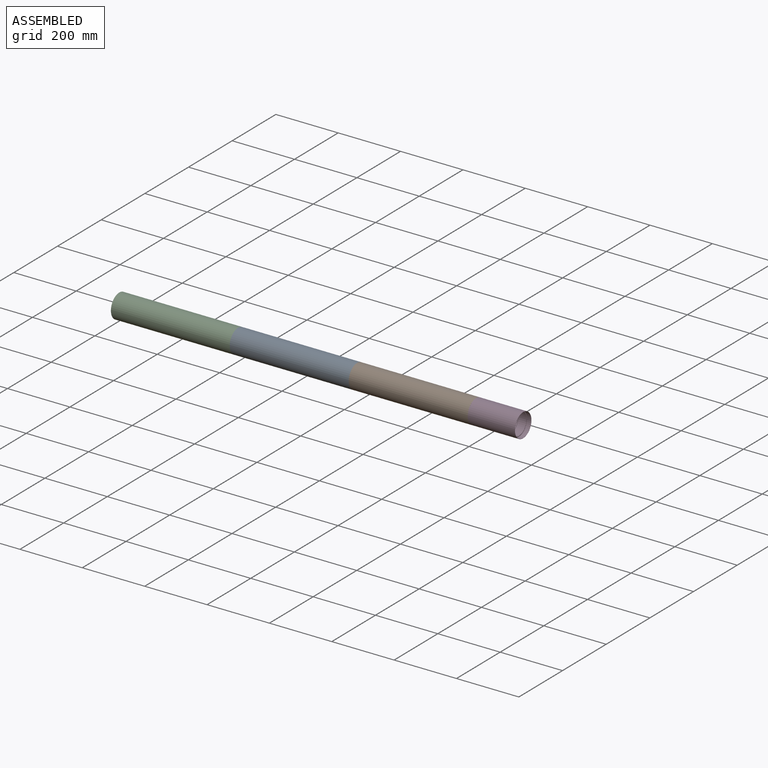
[diagram: assembled view]
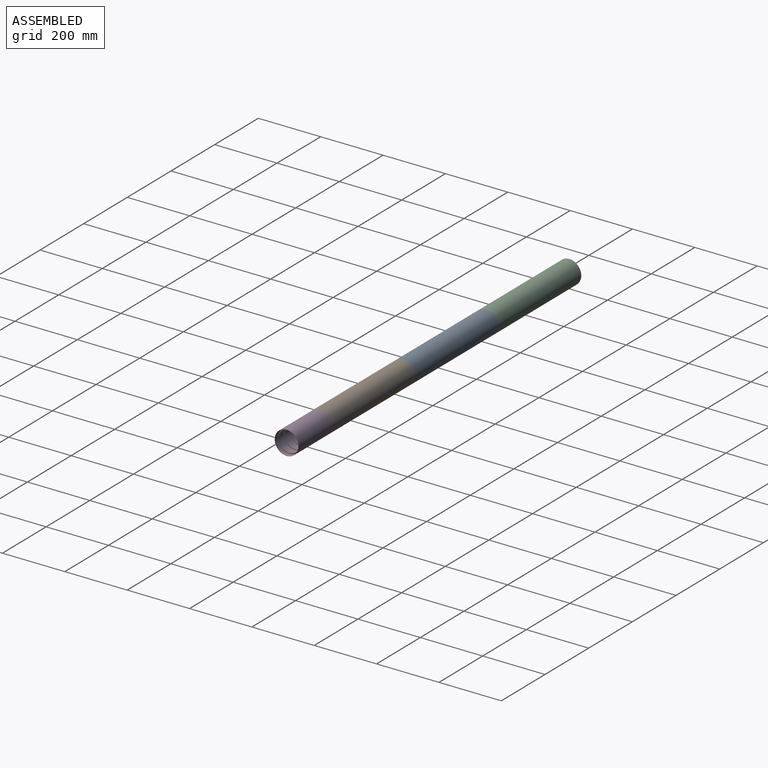
[diagram: assembled view, second angle]
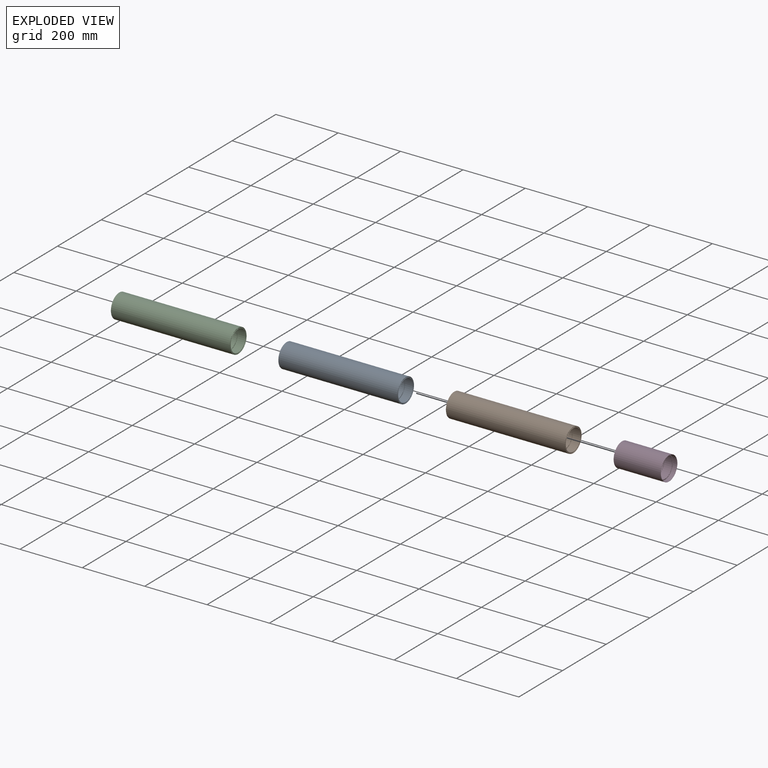
[diagram: exploded view]
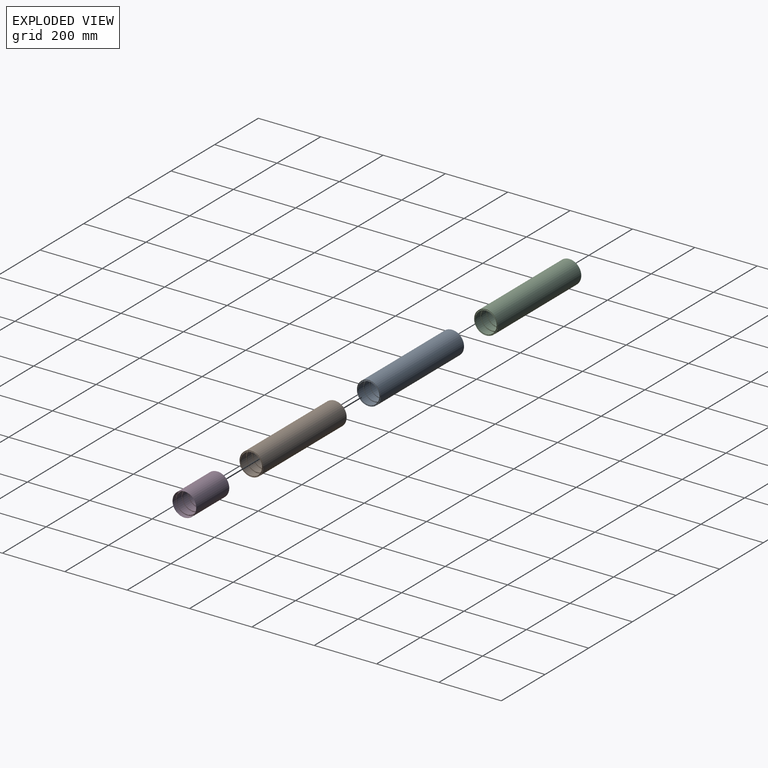
[diagram: exploded view, second angle]
ASSEMBLY  parts=4 mates=3
PART A: 258 faces, bbox 385.2x83.9x83.9 mm
  f0: cone r=34mm half-angle=47.5deg, axis (1,0,0), area 85.3mm2, adj f1,f257
  f1: cylinder r=34.29mm len=68.58mm, axis (-1,0,0), area 219mm2, adj f0,f2
  f2: torus R=36.2mm, axis (-1,0,0), area 136.6mm2, adj f1,f3
  f3: torus R=34.92mm, axis (-1,0,0), area 137.8mm2, adj f2,f4
  f4: torus R=36.2mm, axis (-1,0,0), area 211.3mm2, adj f3,f5
  f5: torus R=36.2mm, axis (-1,0,0), area 143.1mm2, adj f4,f6
  f6: torus R=36.2mm, axis (-1,0,0), area 215.6mm2, adj f5,f7
  f7: torus R=37.46mm, axis (-1,0,0), area 148.3mm2, adj f6,f8
  f8: cylinder r=37.63mm len=75.26mm, axis (-1,0,0), area 5999.8mm2, adj f7,f9
  f9: torus R=37.46mm, axis (-1,0,0), area 148.3mm2, adj f8,f10
  f10: torus R=36.2mm, axis (-1,0,0), area 215.6mm2, adj f9,f11
  f11: torus R=36.2mm, axis (-1,0,0), area 143.1mm2, adj f10,f12
  f12: torus R=36.2mm, axis (-1,0,0), area 211.3mm2, adj f11,f13
  f13: torus R=34.92mm, axis (-1,0,0), area 137.8mm2, adj f12,f14
  f14: torus R=36.2mm, axis (-1,0,0), area 136.6mm2, adj f13,f15
  f15: cylinder r=34.29mm len=68.58mm, axis (-1,0,0), area 219mm2, adj f14,f16
  f16: cone r=34mm half-angle=47.5deg, axis (-1,0,0), area 85.3mm2, adj f15,f17
  f17: cone r=34mm half-angle=47.5deg, axis (1,0,0), area 85.3mm2, adj f16,f18
  f18: cylinder r=34.29mm len=68.58mm, axis (-1,0,0), area 219mm2, adj f17,f19
  f19: torus R=36.2mm, axis (-1,0,0), area 136.6mm2, adj f18,f20
  f20: torus R=34.92mm, axis (-1,0,0), area 137.8mm2, adj f19,f21
  f21: torus R=36.2mm, axis (-1,0,0), area 211.3mm2, adj f20,f22
  f22: torus R=36.2mm, axis (-1,0,0), area 143.1mm2, adj f21,f23
  f23: torus R=36.2mm, axis (-1,0,0), area 215.6mm2, adj f22,f24
  f24: torus R=37.46mm, axis (-1,0,0), area 148.3mm2, adj f23,f25
  f25: cylinder r=37.63mm len=75.26mm, axis (-1,0,0), area 6048.8mm2, adj f24,f26
  f26: torus R=37.46mm, axis (-1,0,0), area 96.7mm2, adj f25,f27
  f27: torus R=36.2mm, axis (-1,0,0), area 215.6mm2, adj f26,f28
  f28: torus R=36.2mm, axis (-1,0,0), area 143.1mm2, adj f27,f29
  f29: torus R=36.2mm, axis (-1,0,0), area 211.3mm2, adj f28,f30
  f30: torus R=34.92mm, axis (-1,0,0), area 137.8mm2, adj f29,f31
  f31: torus R=36.2mm, axis (-1,0,0), area 136.6mm2, adj f30,f32
  f32: cylinder r=34.29mm len=68.58mm, axis (-1,0,0), area 219mm2, adj f31,f33
  f33: cone r=34mm half-angle=47.5deg, axis (-1,0,0), area 85.3mm2, adj f32,f34
  f34: cone r=34mm half-angle=47.5deg, axis (1,0,0), area 85.3mm2, adj f33,f35
  f35: cylinder r=34.29mm len=68.58mm, axis (-1,0,0), area 219mm2, adj f34,f36
  f36: torus R=36.2mm, axis (-1,0,0), area 136.6mm2, adj f35,f37
  f37: torus R=34.92mm, axis (-1,0,0), area 137.8mm2, adj f36,f38
  f38: torus R=36.2mm, axis (-1,0,0), area 211.3mm2, adj f37,f39
  f39: torus R=36.2mm, axis (-1,0,0), area 143.1mm2, adj f38,f40
  f40: torus R=36.2mm, axis (-1,0,0), area 215.6mm2, adj f39,f41
  f41: torus R=37.46mm, axis (-1,0,0), area 96.7mm2, adj f40,f42
  f42: cylinder r=37.63mm len=75.26mm, axis (-1,0,0), area 6097.7mm2, adj f41,f43
  f43: torus R=37.46mm, axis (-1,0,0), area 96.7mm2, adj f42,f44
  f44: torus R=36.2mm, axis (-1,0,0), area 215.6mm2, adj f43,f45
  f45: torus R=36.2mm, axis (-1,0,0), area 143.1mm2, adj f44,f46
  f46: torus R=36.2mm, axis (-1,0,0), area 211.3mm2, adj f45,f47
  f47: torus R=34.92mm, axis (-1,0,0), area 137.8mm2, adj f46,f48
  f48: torus R=36.2mm, axis (-1,0,0), area 136.6mm2, adj f47,f49
  f49: cylinder r=34.29mm len=68.58mm, axis (-1,0,0), area 219mm2, adj f48,f50
  f50: cone r=34mm half-angle=47.5deg, axis (-1,0,0), area 85.3mm2, adj f49,f51
  f51: cone r=34mm half-angle=47.5deg, axis (1,0,0), area 85.3mm2, adj f50,f52
  f52: cylinder r=34.29mm len=68.58mm, axis (-1,0,0), area 219mm2, adj f51,f53
  f53: torus R=36.2mm, axis (-1,0,0), area 136.6mm2, adj f52,f54
  f54: torus R=34.92mm, axis (-1,0,0), area 137.8mm2, adj f53,f55
  f55: torus R=36.2mm, axis (-1,0,0), area 211.3mm2, adj f54,f56
  f56: torus R=36.2mm, axis (-1,0,0), area 143.1mm2, adj f55,f57
  f57: torus R=36.2mm, axis (-1,0,0), area 215.6mm2, adj f56,f58
  f58: torus R=37.46mm, axis (-1,0,0), area 96.7mm2, adj f57,f59
  f59: cylinder r=37.63mm len=75.26mm, axis (-1,0,0), area 6097.7mm2, adj f58,f60
  f60: torus R=37.46mm, axis (-1,0,0), area 96.7mm2, adj f59,f61
  f61: torus R=36.2mm, axis (-1,0,0), area 215.6mm2, adj f60,f62
  f62: torus R=36.2mm, axis (-1,0,0), area 143.1mm2, adj f61,f63
  f63: torus R=36.2mm, axis (-1,0,0), area 211.3mm2, adj f62,f64
  f64: torus R=34.92mm, axis (-1,0,0), area 137.8mm2, adj f63,f65
  f65: torus R=36.2mm, axis (-1,0,0), area 136.6mm2, adj f64,f66
  f66: cylinder r=34.29mm len=68.58mm, axis (-1,0,0), area 219mm2, adj f65,f67
  f67: cone r=34mm half-angle=47.5deg, axis (-1,0,0), area 85.3mm2, adj f66,f68
  f68: cone r=34mm half-angle=47.5deg, axis (1,0,0), area 85.3mm2, adj f67,f69
  f69: cylinder r=34.29mm len=68.58mm, axis (-1,0,0), area 219mm2, adj f68,f70
  f70: torus R=36.2mm, axis (-1,0,0), area 136.6mm2, adj f69,f71
  f71: torus R=34.92mm, axis (-1,0,0), area 137.8mm2, adj f70,f72
  f72: torus R=36.2mm, axis (-1,0,0), area 211.3mm2, adj f71,f73
  f73: torus R=36.2mm, axis (-1,0,0), area 143.1mm2, adj f72,f74
  f74: torus R=36.2mm, axis (-1,0,0), area 215.6mm2, adj f73,f75
  f75: torus R=37.46mm, axis (-1,0,0), area 96.7mm2, adj f74,f76
  f76: cylinder r=37.63mm len=75.26mm, axis (-1,0,0), area 6097.7mm2, adj f75,f77
  f77: torus R=37.46mm, axis (-1,0,0), area 96.7mm2, adj f76,f78
  f78: torus R=36.2mm, axis (-1,0,0), area 215.6mm2, adj f77,f79
  f79: torus R=36.2mm, axis (-1,0,0), area 143.1mm2, adj f78,f80
  f80: torus R=36.2mm, axis (-1,0,0), area 211.3mm2, adj f79,f81
  f81: torus R=34.92mm, axis (-1,0,0), area 137.8mm2, adj f80,f82
  f82: torus R=36.2mm, axis (-1,0,0), area 136.6mm2, adj f81,f83
  f83: cylinder r=34.29mm len=68.58mm, axis (-1,0,0), area 219mm2, adj f82,f84
  f84: cone r=34mm half-angle=47.5deg, axis (-1,0,0), area 85.3mm2, adj f83,f85
  f85: cone r=34mm half-angle=47.5deg, axis (1,0,0), area 85.3mm2, adj f84,f86
  f86: cylinder r=34.29mm len=68.58mm, axis (-1,0,0), area 219mm2, adj f85,f87
  f87: torus R=36.2mm, axis (-1,0,0), area 136.6mm2, adj f86,f88
  f88: torus R=34.92mm, axis (-1,0,0), area 137.8mm2, adj f87,f89
  f89: torus R=36.2mm, axis (-1,0,0), area 211.3mm2, adj f88,f90
  f90: torus R=36.2mm, axis (-1,0,0), area 143.1mm2, adj f89,f91
  f91: torus R=36.2mm, axis (-1,0,0), area 215.6mm2, adj f90,f92
  f92: torus R=37.46mm, axis (-1,0,0), area 96.7mm2, adj f91,f93
  f93: cylinder r=37.63mm len=75.26mm, axis (-1,0,0), area 6097.7mm2, adj f92,f94
  f94: torus R=37.46mm, axis (-1,0,0), area 96.7mm2, adj f93,f95
  f95: torus R=36.2mm, axis (-1,0,0), area 215.6mm2, adj f94,f96
  f96: torus R=36.2mm, axis (-1,0,0), area 143.1mm2, adj f95,f97
  f97: torus R=36.2mm, axis (-1,0,0), area 211.3mm2, adj f96,f98
  f98: torus R=34.92mm, axis (-1,0,0), area 137.8mm2, adj f97,f99
  f99: torus R=36.2mm, axis (-1,0,0), area 136.6mm2, adj f98,f100
  f100: cylinder r=34.29mm len=68.58mm, axis (-1,0,0), area 219mm2, adj f99,f101
  f101: cone r=34mm half-angle=47.5deg, axis (-1,0,0), area 85.3mm2, adj f100,f102
  f102: cone r=34mm half-angle=47.5deg, axis (1,0,0), area 85.3mm2, adj f101,f103
  f103: cylinder r=34.29mm len=68.58mm, axis (-1,0,0), area 219mm2, adj f102,f104
  f104: torus R=36.2mm, axis (-1,0,0), area 136.6mm2, adj f103,f105
  f105: torus R=34.92mm, axis (-1,0,0), area 137.8mm2, adj f104,f106
  f106: torus R=36.2mm, axis (-1,0,0), area 211.3mm2, adj f105,f107
  f107: torus R=36.2mm, axis (-1,0,0), area 143.1mm2, adj f106,f108
  f108: torus R=36.2mm, axis (-1,0,0), area 215.6mm2, adj f107,f109
  f109: torus R=37.46mm, axis (-1,0,0), area 96.7mm2, adj f108,f110
  f110: cylinder r=37.63mm len=75.26mm, axis (-1,0,0), area 6097.7mm2, adj f109,f111
  f111: torus R=37.46mm, axis (-1,0,0), area 96.7mm2, adj f110,f112
  f112: torus R=36.2mm, axis (-1,0,0), area 215.6mm2, adj f111,f113
  f113: torus R=36.2mm, axis (-1,0,0), area 143.1mm2, adj f112,f114
  f114: torus R=36.2mm, axis (-1,0,0), area 211.3mm2, adj f113,f115
  f115: torus R=34.92mm, axis (-1,0,0), area 137.8mm2, adj f114,f116
  f116: torus R=36.2mm, axis (-1,0,0), area 136.6mm2, adj f115,f117
  f117: cylinder r=34.29mm len=68.58mm, axis (-1,0,0), area 219mm2, adj f116,f118
  f118: cone r=34mm half-angle=47.5deg, axis (-1,0,0), area 85.3mm2, adj f117,f119
  f119: cone r=34mm half-angle=47.5deg, axis (1,0,0), area 85.3mm2, adj f118,f120
  f120: cylinder r=34.29mm len=68.58mm, axis (-1,0,0), area 219mm2, adj f119,f121
  f121: torus R=36.2mm, axis (-1,0,0), area 136.6mm2, adj f120,f122
  f122: torus R=34.92mm, axis (-1,0,0), area 137.8mm2, adj f121,f123
  f123: torus R=36.2mm, axis (-1,0,0), area 211.3mm2, adj f122,f124
  f124: torus R=36.2mm, axis (-1,0,0), area 143.1mm2, adj f123,f125
  f125: torus R=36.2mm, axis (-1,0,0), area 215.6mm2, adj f124,f126
  f126: torus R=37.46mm, axis (-1,0,0), area 96.7mm2, adj f125,f127
  f127: cylinder r=37.63mm len=75.26mm, axis (-1,0,0), area 6097.7mm2, adj f126,f128
  f128: torus R=37.46mm, axis (-1,0,0), area 96.7mm2, adj f127,f129
  f129: torus R=36.2mm, axis (-1,0,0), area 215.6mm2, adj f128,f130
  f130: torus R=36.2mm, axis (-1,0,0), area 143.1mm2, adj f129,f131
  f131: torus R=36.2mm, axis (-1,0,0), area 211.3mm2, adj f130,f132
  f132: torus R=34.92mm, axis (-1,0,0), area 137.8mm2, adj f131,f133
  f133: torus R=36.2mm, axis (-1,0,0), area 136.6mm2, adj f132,f134
  f134: cylinder r=34.29mm len=68.58mm, axis (-1,0,0), area 219mm2, adj f133,f135
  f135: cone r=34mm half-angle=47.5deg, axis (-1,0,0), area 85.3mm2, adj f134,f136
  f136: cone r=34mm half-angle=47.5deg, axis (1,0,0), area 85.3mm2, adj f135,f137
  f137: cylinder r=34.29mm len=68.58mm, axis (-1,0,0), area 219mm2, adj f136,f138
  f138: torus R=36.2mm, axis (-1,0,0), area 136.6mm2, adj f137,f139
  f139: torus R=34.92mm, axis (-1,0,0), area 137.8mm2, adj f138,f140
  f140: torus R=36.2mm, axis (-1,0,0), area 211.3mm2, adj f139,f141
  f141: torus R=36.2mm, axis (-1,0,0), area 143.1mm2, adj f140,f142
  f142: torus R=36.2mm, axis (-1,0,0), area 215.6mm2, adj f141,f143
  f143: torus R=37.46mm, axis (-1,0,0), area 96.7mm2, adj f142,f144
  f144: cylinder r=37.63mm len=75.26mm, axis (-1,0,0), area 6097.7mm2, adj f143,f145
  f145: torus R=37.46mm, axis (-1,0,0), area 96.7mm2, adj f144,f146
  f146: torus R=36.2mm, axis (-1,0,0), area 215.6mm2, adj f145,f147
  f147: torus R=36.2mm, axis (-1,0,0), area 143.1mm2, adj f146,f148
  f148: torus R=36.2mm, axis (-1,0,0), area 211.3mm2, adj f147,f149
  f149: torus R=34.92mm, axis (-1,0,0), area 137.8mm2, adj f148,f150
  f150: torus R=36.2mm, axis (-1,0,0), area 136.6mm2, adj f149,f151
  f151: cylinder r=34.29mm len=68.58mm, axis (-1,0,0), area 219mm2, adj f150,f152
  f152: cone r=34mm half-angle=47.5deg, axis (-1,0,0), area 85.3mm2, adj f151,f153
  f153: cone r=34mm half-angle=47.5deg, axis (1,0,0), area 85.3mm2, adj f152,f154
  f154: cylinder r=34.29mm len=68.58mm, axis (-1,0,0), area 219mm2, adj f153,f155
  f155: torus R=36.2mm, axis (-1,0,0), area 136.6mm2, adj f154,f156
  f156: torus R=34.92mm, axis (-1,0,0), area 137.8mm2, adj f155,f157
  f157: torus R=36.2mm, axis (-1,0,0), area 211.3mm2, adj f156,f158
  f158: torus R=36.2mm, axis (-1,0,0), area 143.1mm2, adj f157,f159
  f159: torus R=36.2mm, axis (-1,0,0), area 215.6mm2, adj f158,f160
  f160: torus R=37.46mm, axis (-1,0,0), area 96.7mm2, adj f159,f161
  f161: cylinder r=37.63mm len=75.26mm, axis (-1,0,0), area 6097.7mm2, adj f160,f162
  f162: torus R=37.46mm, axis (-1,0,0), area 96.7mm2, adj f161,f163
  f163: torus R=36.2mm, axis (-1,0,0), area 215.6mm2, adj f162,f164
  f164: torus R=36.2mm, axis (-1,0,0), area 143.1mm2, adj f163,f165
  f165: torus R=36.2mm, axis (-1,0,0), area 211.3mm2, adj f164,f166
  f166: torus R=34.92mm, axis (-1,0,0), area 137.8mm2, adj f165,f167
  f167: torus R=36.2mm, axis (-1,0,0), area 136.6mm2, adj f166,f168
  f168: cylinder r=34.29mm len=68.58mm, axis (-1,0,0), area 219mm2, adj f167,f169
  f169: cone r=34mm half-angle=47.5deg, axis (-1,0,0), area 85.3mm2, adj f168,f170
  f170: cone r=34mm half-angle=47.5deg, axis (1,0,0), area 85.3mm2, adj f169,f171
  f171: cylinder r=34.29mm len=68.58mm, axis (-1,0,0), area 219mm2, adj f170,f172
  f172: torus R=36.2mm, axis (-1,0,0), area 136.6mm2, adj f171,f173
  f173: torus R=34.92mm, axis (-1,0,0), area 137.8mm2, adj f172,f174
  f174: torus R=36.2mm, axis (-1,0,0), area 211.3mm2, adj f173,f175
  f175: torus R=36.2mm, axis (-1,0,0), area 143.1mm2, adj f174,f176
  f176: torus R=36.2mm, axis (-1,0,0), area 215.6mm2, adj f175,f177
  f177: torus R=37.46mm, axis (-1,0,0), area 96.7mm2, adj f176,f178
  f178: cylinder r=37.63mm len=75.26mm, axis (-1,0,0), area 6097.7mm2, adj f177,f179
  f179: torus R=37.46mm, axis (-1,0,0), area 96.7mm2, adj f178,f180
  f180: torus R=36.2mm, axis (-1,0,0), area 215.6mm2, adj f179,f181
  f181: torus R=36.2mm, axis (-1,0,0), area 143.1mm2, adj f180,f182
  f182: torus R=36.2mm, axis (-1,0,0), area 211.3mm2, adj f181,f183
  f183: torus R=34.92mm, axis (-1,0,0), area 137.8mm2, adj f182,f184
  f184: torus R=36.2mm, axis (-1,0,0), area 136.6mm2, adj f183,f185
  f185: cylinder r=34.29mm len=68.58mm, axis (-1,0,0), area 219mm2, adj f184,f186
  f186: cone r=34mm half-angle=47.5deg, axis (-1,0,0), area 85.3mm2, adj f185,f187
  f187: cone r=34mm half-angle=47.5deg, axis (1,0,0), area 85.3mm2, adj f186,f188
  f188: cylinder r=34.29mm len=68.58mm, axis (-1,0,0), area 219mm2, adj f187,f189
  f189: torus R=36.2mm, axis (-1,0,0), area 136.6mm2, adj f188,f190
  f190: torus R=34.92mm, axis (-1,0,0), area 137.8mm2, adj f189,f191
  f191: torus R=36.2mm, axis (-1,0,0), area 211.3mm2, adj f190,f192
  f192: torus R=36.2mm, axis (-1,0,0), area 143.1mm2, adj f191,f193
  f193: torus R=36.2mm, axis (-1,0,0), area 215.6mm2, adj f192,f194
  f194: torus R=37.46mm, axis (-1,0,0), area 96.7mm2, adj f193,f195
  f195: cylinder r=37.63mm len=75.26mm, axis (-1,0,0), area 6097.7mm2, adj f194,f196
  f196: torus R=37.46mm, axis (-1,0,0), area 96.7mm2, adj f195,f197
  f197: torus R=36.2mm, axis (-1,0,0), area 215.6mm2, adj f196,f198
  f198: torus R=36.2mm, axis (-1,0,0), area 143.1mm2, adj f197,f199
  f199: torus R=36.2mm, axis (-1,0,0), area 211.3mm2, adj f198,f200
  f200: torus R=34.92mm, axis (-1,0,0), area 137.8mm2, adj f199,f201
  f201: torus R=36.2mm, axis (-1,0,0), area 136.6mm2, adj f200,f202
  f202: cylinder r=34.29mm len=68.58mm, axis (-1,0,0), area 219mm2, adj f201,f203
  f203: cone r=34mm half-angle=47.5deg, axis (-1,0,0), area 85.3mm2, adj f202,f204
  f204: cone r=34mm half-angle=47.5deg, axis (1,0,0), area 85.3mm2, adj f203,f205
  f205: cylinder r=34.29mm len=68.58mm, axis (-1,0,0), area 219mm2, adj f204,f206
  f206: torus R=36.2mm, axis (-1,0,0), area 136.6mm2, adj f205,f207
  f207: torus R=34.92mm, axis (-1,0,0), area 137.8mm2, adj f206,f208
  f208: torus R=36.2mm, axis (-1,0,0), area 211.3mm2, adj f207,f209
  f209: torus R=36.2mm, axis (-1,0,0), area 143.1mm2, adj f208,f210
  f210: torus R=36.2mm, axis (-1,0,0), area 215.6mm2, adj f209,f211
  f211: torus R=37.46mm, axis (-1,0,0), area 96.7mm2, adj f210,f212
  f212: cylinder r=37.63mm len=75.26mm, axis (-1,0,0), area 6097.7mm2, adj f211,f213
  f213: torus R=37.46mm, axis (-1,0,0), area 96.7mm2, adj f212,f214
  f214: torus R=36.2mm, axis (-1,0,0), area 215.6mm2, adj f213,f215
  f215: torus R=36.2mm, axis (-1,0,0), area 143.1mm2, adj f214,f216
  f216: torus R=36.2mm, axis (-1,0,0), area 211.3mm2, adj f215,f217
  f217: torus R=34.92mm, axis (-1,0,0), area 137.8mm2, adj f216,f218
  f218: torus R=36.2mm, axis (-1,0,0), area 136.6mm2, adj f217,f219
  f219: cylinder r=34.29mm len=68.58mm, axis (-1,0,0), area 219mm2, adj f218,f220
  f220: cone r=34mm half-angle=47.5deg, axis (-1,0,0), area 85.3mm2, adj f219,f221
  f221: cone r=34mm half-angle=47.5deg, axis (1,0,0), area 85.3mm2, adj f220,f222
  f222: cylinder r=34.29mm len=68.58mm, axis (-1,0,0), area 219mm2, adj f221,f223
  f223: torus R=36.2mm, axis (-1,0,0), area 136.6mm2, adj f222,f224
  f224: torus R=34.92mm, axis (-1,0,0), area 137.8mm2, adj f223,f225
  f225: torus R=36.2mm, axis (-1,0,0), area 211.3mm2, adj f224,f226
  f226: torus R=36.2mm, axis (-1,0,0), area 143.1mm2, adj f225,f227
  f227: torus R=36.2mm, axis (-1,0,0), area 215.6mm2, adj f226,f228
  f228: torus R=37.46mm, axis (-1,0,0), area 96.7mm2, adj f227,f229
  f229: cylinder r=37.63mm len=75.26mm, axis (-1,0,0), area 6097.7mm2, adj f228,f230
  f230: torus R=37.46mm, axis (-1,0,0), area 96.7mm2, adj f229,f231
  f231: torus R=36.2mm, axis (-1,0,0), area 215.6mm2, adj f230,f232
  f232: torus R=36.2mm, axis (-1,0,0), area 143.1mm2, adj f231,f233
  f233: torus R=36.2mm, axis (-1,0,0), area 211.3mm2, adj f232,f234
  f234: torus R=34.92mm, axis (-1,0,0), area 137.8mm2, adj f233,f235
  f235: torus R=36.2mm, axis (-1,0,0), area 136.6mm2, adj f234,f236
  f236: cylinder r=34.29mm len=68.58mm, axis (-1,0,0), area 219mm2, adj f235,f237
  f237: cone r=34mm half-angle=47.5deg, axis (-1,0,0), area 85.3mm2, adj f236,f238
  f238: cone r=34mm half-angle=47.5deg, axis (1,0,0), area 85.3mm2, adj f237,f239
  f239: cylinder r=34.29mm len=68.58mm, axis (-1,0,0), area 219mm2, adj f238,f240
  f240: torus R=36.2mm, axis (-1,0,0), area 136.6mm2, adj f239,f241
  f241: torus R=34.92mm, axis (-1,0,0), area 137.8mm2, adj f240,f242
  f242: torus R=36.2mm, axis (-1,0,0), area 211.3mm2, adj f241,f243
  f243: torus R=36.2mm, axis (-1,0,0), area 143.1mm2, adj f242,f244
  f244: torus R=36.2mm, axis (-1,0,0), area 215.6mm2, adj f243,f245
  f245: torus R=37.46mm, axis (-1,0,0), area 96.7mm2, adj f244,f246
  f246: cylinder r=37.63mm len=75.26mm, axis (-1,0,0), area 49mm2, adj f245,f247
  f247: torus R=36.2mm, axis (-1,0,0), area 148.8mm2, adj f246,f248
  f248: cylinder r=38.1mm len=381.85mm, axis (-1,0,0), area 91410mm2, adj f247,f249
  f249: torus R=36.2mm, axis (-1,0,0), area 148.8mm2, adj f248,f250
  f250: torus R=37.46mm, axis (-1,0,0), area 148.3mm2, adj f249,f251
  f251: torus R=36.2mm, axis (-1,0,0), area 215.6mm2, adj f250,f252
  f252: torus R=36.2mm, axis (-1,0,0), area 143.1mm2, adj f251,f253
  f253: torus R=36.2mm, axis (-1,0,0), area 211.3mm2, adj f252,f254
  f254: torus R=34.92mm, axis (-1,0,0), area 137.8mm2, adj f253,f255
  f255: torus R=36.2mm, axis (-1,0,0), area 136.6mm2, adj f254,f256
  f256: cylinder r=34.29mm len=68.58mm, axis (-1,0,0), area 219mm2, adj f255,f257
  f257: cone r=34mm half-angle=47.5deg, axis (-1,0,0), area 85.3mm2, adj f0,f256
PART B: same geometry as A
PART C: same geometry as A
PART D: 105 faces, bbox 152.8x83.9x83.9 mm
  f0: torus R=37.46mm, axis (-1,0,0), area 96.7mm2, adj f1,f52
  f1: torus R=36.2mm, axis (-1,0,0), area 215.6mm2, adj f0,f2
  f2: torus R=36.2mm, axis (-1,0,0), area 143.1mm2, adj f1,f3
  f3: torus R=36.2mm, axis (-1,0,0), area 211.3mm2, adj f2,f4
  f4: torus R=34.92mm, axis (-1,0,0), area 137.8mm2, adj f3,f5
  f5: torus R=36.2mm, axis (-1,0,0), area 136.6mm2, adj f4,f6
  f6: cylinder r=34.29mm len=68.58mm, axis (-1,0,0), area 219mm2, adj f5,f7
  f7: cone r=34mm half-angle=47.5deg, axis (1,0,0), area 85.3mm2, adj f6,f8
  f8: cone r=34mm half-angle=47.5deg, axis (-1,0,0), area 85.3mm2, adj f7,f9
  f9: cylinder r=34.29mm len=68.58mm, axis (-1,0,0), area 219mm2, adj f8,f10
  f10: torus R=36.2mm, axis (-1,0,0), area 136.6mm2, adj f9,f11
  f11: torus R=34.92mm, axis (-1,0,0), area 137.8mm2, adj f10,f12
  f12: torus R=36.2mm, axis (-1,0,0), area 211.3mm2, adj f11,f13
  f13: torus R=36.2mm, axis (-1,0,0), area 143.1mm2, adj f12,f14
  f14: torus R=36.2mm, axis (-1,0,0), area 215.6mm2, adj f13,f15
  f15: torus R=37.46mm, axis (-1,0,0), area 96.7mm2, adj f14,f16
  f16: cylinder r=37.63mm len=75.26mm, axis (-1,0,0), area 6048.8mm2, adj f15,f17
  f17: torus R=37.46mm, axis (-1,0,0), area 148.3mm2, adj f16,f18
  f18: torus R=36.2mm, axis (-1,0,0), area 215.6mm2, adj f17,f19
  f19: torus R=36.2mm, axis (-1,0,0), area 143.1mm2, adj f18,f20
  f20: torus R=36.2mm, axis (-1,0,0), area 211.3mm2, adj f19,f21
  f21: torus R=34.92mm, axis (-1,0,0), area 137.8mm2, adj f20,f22
  f22: torus R=36.2mm, axis (-1,0,0), area 136.6mm2, adj f21,f23
  f23: cylinder r=34.29mm len=68.58mm, axis (-1,0,0), area 219mm2, adj f22,f24
  f24: cone r=34mm half-angle=47.5deg, axis (1,0,0), area 85.3mm2, adj f23,f25
  f25: cone r=34mm half-angle=47.5deg, axis (-1,0,0), area 85.3mm2, adj f24,f26
  f26: cylinder r=34.29mm len=68.58mm, axis (-1,0,0), area 219mm2, adj f25,f27
  f27: torus R=36.2mm, axis (-1,0,0), area 136.6mm2, adj f26,f28
  f28: torus R=34.92mm, axis (-1,0,0), area 137.8mm2, adj f27,f29
  f29: torus R=36.2mm, axis (-1,0,0), area 211.3mm2, adj f28,f30
  f30: torus R=36.2mm, axis (-1,0,0), area 143.1mm2, adj f29,f31
  f31: torus R=36.2mm, axis (-1,0,0), area 215.6mm2, adj f30,f32
  f32: torus R=37.46mm, axis (-1,0,0), area 148.3mm2, adj f31,f33
  f33: cylinder r=37.63mm len=75.26mm, axis (-1,0,0), area 5999.8mm2, adj f32,f34
  f34: torus R=37.46mm, axis (-1,0,0), area 148.3mm2, adj f33,f35
  f35: torus R=36.2mm, axis (-1,0,0), area 215.6mm2, adj f34,f36
  f36: torus R=36.2mm, axis (-1,0,0), area 143.1mm2, adj f35,f37
  f37: torus R=36.2mm, axis (-1,0,0), area 211.3mm2, adj f36,f38
  f38: torus R=34.92mm, axis (-1,0,0), area 137.8mm2, adj f37,f39
  f39: torus R=36.2mm, axis (-1,0,0), area 136.6mm2, adj f38,f40
  f40: cylinder r=34.29mm len=68.58mm, axis (-1,0,0), area 219mm2, adj f39,f41
  f41: cone r=34mm half-angle=47.5deg, axis (1,0,0), area 85.3mm2, adj f40,f42
  f42: cone r=34mm half-angle=47.5deg, axis (-1,0,0), area 85.3mm2, adj f41,f43
  f43: cylinder r=34.29mm len=68.58mm, axis (-1,0,0), area 219mm2, adj f42,f44
  f44: torus R=36.2mm, axis (-1,0,0), area 136.6mm2, adj f43,f45
  f45: torus R=34.92mm, axis (-1,0,0), area 137.8mm2, adj f44,f46
  f46: torus R=36.2mm, axis (-1,0,0), area 211.3mm2, adj f45,f47
  f47: torus R=36.2mm, axis (-1,0,0), area 143.1mm2, adj f46,f48
  f48: torus R=36.2mm, axis (-1,0,0), area 215.6mm2, adj f47,f49
  f49: torus R=37.46mm, axis (-1,0,0), area 148.3mm2, adj f48,f50
  f50: torus R=36.2mm, axis (-1,0,0), area 148.8mm2, adj f49,f51
  f51: cylinder r=38.1mm len=151.11mm, axis (-1,0,0), area 36175.1mm2, adj f50,f104
  f52: cylinder r=37.63mm len=75.26mm, axis (-1,0,0), area 6097.7mm2, adj f0,f53
  f53: torus R=37.46mm, axis (-1,0,0), area 96.7mm2, adj f52,f54
  f54: torus R=36.2mm, axis (-1,0,0), area 215.6mm2, adj f53,f55
  f55: torus R=36.2mm, axis (-1,0,0), area 143.1mm2, adj f54,f56
  f56: torus R=36.2mm, axis (-1,0,0), area 211.3mm2, adj f55,f57
  f57: torus R=34.92mm, axis (-1,0,0), area 137.8mm2, adj f56,f58
  f58: torus R=36.2mm, axis (-1,0,0), area 136.6mm2, adj f57,f59
  f59: cylinder r=34.29mm len=68.58mm, axis (-1,0,0), area 219mm2, adj f58,f60
  f60: cone r=34mm half-angle=47.5deg, axis (-1,0,0), area 85.3mm2, adj f59,f61
  f61: cone r=34mm half-angle=47.5deg, axis (1,0,0), area 85.3mm2, adj f60,f62
  f62: cylinder r=34.29mm len=68.58mm, axis (-1,0,0), area 219mm2, adj f61,f63
  f63: torus R=36.2mm, axis (-1,0,0), area 136.6mm2, adj f62,f64
  f64: torus R=34.92mm, axis (-1,0,0), area 137.8mm2, adj f63,f65
  f65: torus R=36.2mm, axis (-1,0,0), area 211.3mm2, adj f64,f66
  f66: torus R=36.2mm, axis (-1,0,0), area 143.1mm2, adj f65,f67
  f67: torus R=36.2mm, axis (-1,0,0), area 215.6mm2, adj f66,f68
  f68: torus R=37.46mm, axis (-1,0,0), area 96.7mm2, adj f67,f69
  f69: cylinder r=37.63mm len=75.26mm, axis (-1,0,0), area 6097.7mm2, adj f68,f70
  f70: torus R=37.46mm, axis (-1,0,0), area 96.7mm2, adj f69,f71
  f71: torus R=36.2mm, axis (-1,0,0), area 215.6mm2, adj f70,f72
  f72: torus R=36.2mm, axis (-1,0,0), area 143.1mm2, adj f71,f73
  f73: torus R=36.2mm, axis (-1,0,0), area 211.3mm2, adj f72,f74
  f74: torus R=34.92mm, axis (-1,0,0), area 137.8mm2, adj f73,f75
  f75: torus R=36.2mm, axis (-1,0,0), area 136.6mm2, adj f74,f76
  f76: cylinder r=34.29mm len=68.58mm, axis (-1,0,0), area 219mm2, adj f75,f77
  f77: cone r=34mm half-angle=47.5deg, axis (-1,0,0), area 85.3mm2, adj f76,f78
  f78: cone r=34mm half-angle=47.5deg, axis (1,0,0), area 85.3mm2, adj f77,f79
  f79: cylinder r=34.29mm len=68.58mm, axis (-1,0,0), area 219mm2, adj f78,f80
  f80: torus R=36.2mm, axis (-1,0,0), area 136.6mm2, adj f79,f81
  f81: torus R=34.92mm, axis (-1,0,0), area 137.8mm2, adj f80,f82
  f82: torus R=36.2mm, axis (-1,0,0), area 211.3mm2, adj f81,f83
  f83: torus R=36.2mm, axis (-1,0,0), area 143.1mm2, adj f82,f84
  f84: torus R=36.2mm, axis (-1,0,0), area 215.6mm2, adj f83,f85
  f85: torus R=37.46mm, axis (-1,0,0), area 96.7mm2, adj f84,f86
  f86: cylinder r=37.63mm len=75.26mm, axis (-1,0,0), area 6097.7mm2, adj f85,f87
  f87: torus R=37.46mm, axis (-1,0,0), area 96.7mm2, adj f86,f88
  f88: torus R=36.2mm, axis (-1,0,0), area 215.6mm2, adj f87,f89
  f89: torus R=36.2mm, axis (-1,0,0), area 143.1mm2, adj f88,f90
  f90: torus R=36.2mm, axis (-1,0,0), area 211.3mm2, adj f89,f91
  f91: torus R=34.92mm, axis (-1,0,0), area 137.8mm2, adj f90,f92
  f92: torus R=36.2mm, axis (-1,0,0), area 136.6mm2, adj f91,f93
  f93: cylinder r=34.29mm len=68.58mm, axis (-1,0,0), area 219mm2, adj f92,f94
  f94: cone r=34mm half-angle=47.5deg, axis (-1,0,0), area 85.3mm2, adj f93,f95
  f95: cone r=34mm half-angle=47.5deg, axis (1,0,0), area 85.3mm2, adj f94,f96
  f96: cylinder r=34.29mm len=68.58mm, axis (-1,0,0), area 219mm2, adj f95,f97
  f97: torus R=36.2mm, axis (-1,0,0), area 136.6mm2, adj f96,f98
  f98: torus R=34.92mm, axis (-1,0,0), area 137.8mm2, adj f97,f99
  f99: torus R=36.2mm, axis (-1,0,0), area 211.3mm2, adj f98,f100
  f100: torus R=36.2mm, axis (-1,0,0), area 143.1mm2, adj f99,f101
  f101: torus R=36.2mm, axis (-1,0,0), area 215.6mm2, adj f100,f102
  f102: torus R=37.46mm, axis (-1,0,0), area 96.7mm2, adj f101,f103
  f103: cylinder r=37.63mm len=75.26mm, axis (-1,0,0), area 3245.3mm2, adj f102,f104
  f104: plane 76.2x76.2mm, normal (1,0,0), area 111.6mm2, adj f51,f103
PLACE A at identity
PLACE B t=(381.44,0,0)mm
PLACE C t=(-381,0,0)mm
PLACE D t=(763.3,0,0)mm
MATE fastened B.f0 <-> D.f0  axis (-1,0,0) through (560.08,889,0)mm
MATE fastened C.f0 <-> A.f0  axis (-1,0,0) through (-202.36,889,0)mm
MATE fastened B.f0 <-> A.f0  axis (-1,0,0) through (178.24,889,0)mm
